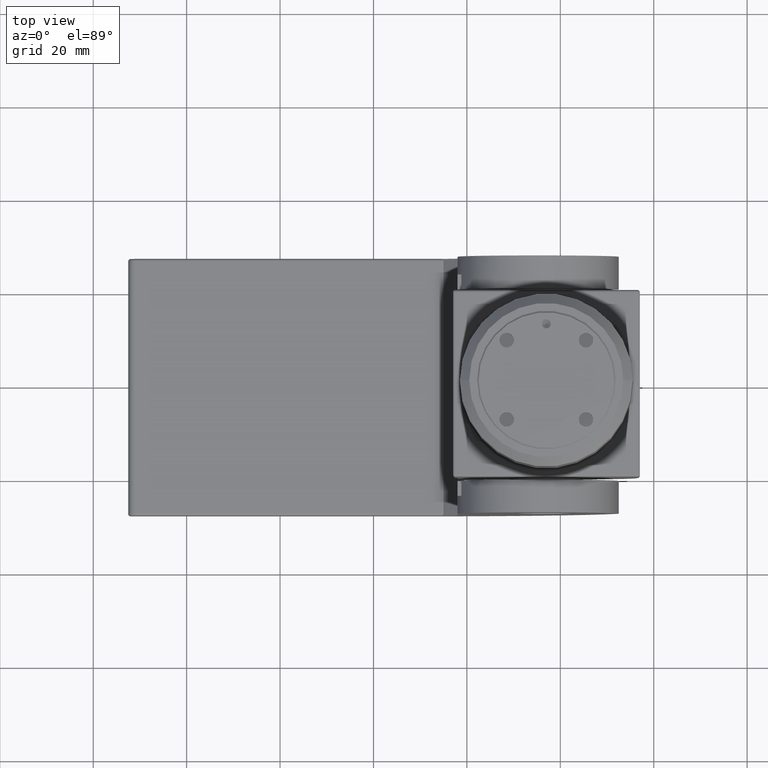
[diagram: clean part render]
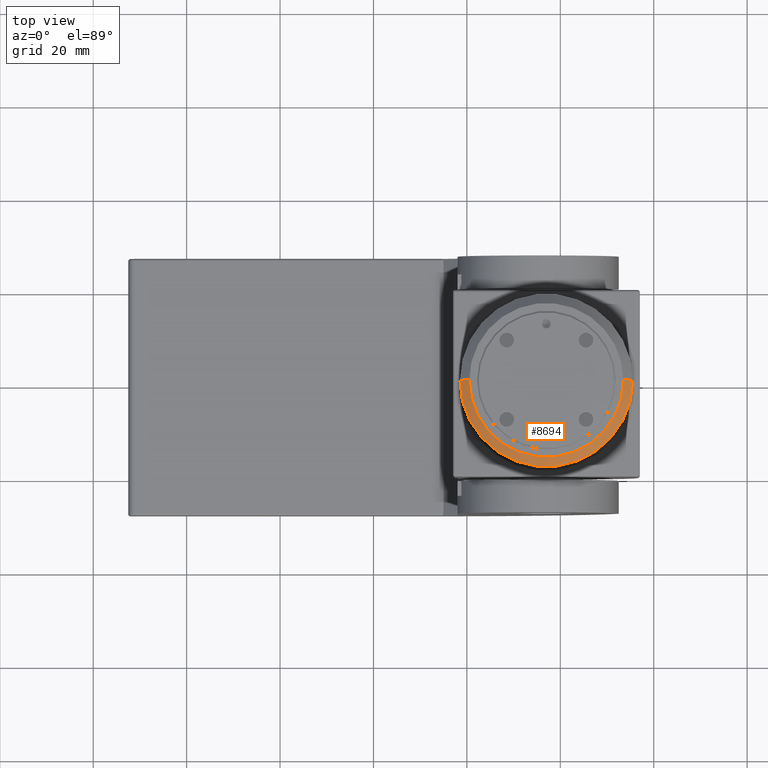
[diagram: same view with one face highlighted and labeled with its STEP entity id]
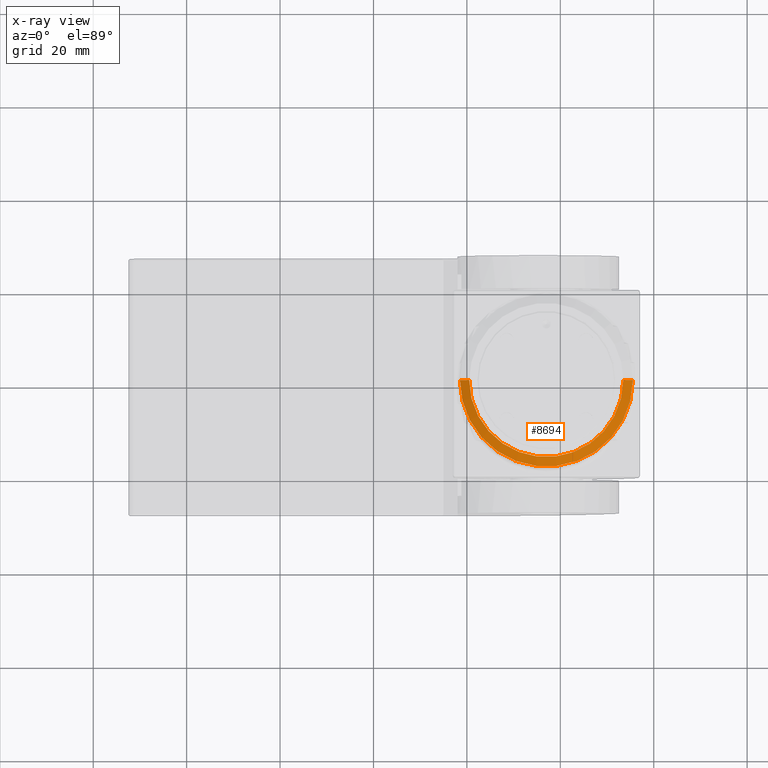
[diagram: x-ray of the same camera — body ghosted, the highlighted face saturated]
A machine part, top view. The second image highlights one B-rep face of the part: STEP entity #8694.
The next image is the same camera in x-ray: the body ghosted, the highlighted face saturated — about 0% of this face is hidden behind the body in this view.
In plain terms, the highlighted conical surface has half-angle 45 deg.
Its self-contained STEP definition (entity closure, byte-faithful):
#807 = DIRECTION ( 'NONE',  ( 1.000000000000000000, 0.000000000000000000, 0.000000000000000000 ) ) ;
#1109 = CARTESIAN_POINT ( 'NONE',  ( -18.50000000000000000, 0.000000000000000000, 39.49999999999996447 ) ) ;
#1130 = LINE ( 'NONE', #19925, #7360 ) ;
#2403 = CARTESIAN_POINT ( 'NONE',  ( 0.000000000000000000, 0.000000000000000000, 39.49999999999996447 ) ) ;
#3007 = VERTEX_POINT ( 'NONE', #9163 ) ;
#3282 = CIRCLE ( 'NONE', #16482, 18.50000000000000000 ) ;
#3652 = ORIENTED_EDGE ( 'NONE', *, *, #20141, .T. ) ;
#3674 = AXIS2_PLACEMENT_3D ( 'NONE', #7520, #14750, #9320 ) ;
#3772 = CONICAL_SURFACE ( 'NONE', #3674, 16.49999999999997158, 0.7853981633974457255 ) ;
#4081 = DIRECTION ( 'NONE',  ( 0.000000000000000000, 0.000000000000000000, -1.000000000000000000 ) ) ;
#4127 = ORIENTED_EDGE ( 'NONE', *, *, #5957, .F. ) ;
#4492 = VERTEX_POINT ( 'NONE', #8134 ) ;
#5957 = EDGE_CURVE ( 'NONE', #4492, #3007, #1130, .T. ) ;
#6328 = EDGE_CURVE ( 'NONE', #3007, #21605, #3282, .T. ) ;
#7360 = VECTOR ( 'NONE', #16668, 1000.000000000000000 ) ;
#7436 = EDGE_CURVE ( 'NONE', #12280, #4492, #8922, .T. ) ;
#7520 = CARTESIAN_POINT ( 'NONE',  ( 0.000000000000000000, 0.000000000000000000, 41.50000000000000711 ) ) ;
#8134 = CARTESIAN_POINT ( 'NONE',  ( 16.49999999999997158, 2.143131898507866276E-15, 41.50000000000000711 ) ) ;
#8454 = ORIENTED_EDGE ( 'NONE', *, *, #7436, .F. ) ;
#8694 = ADVANCED_FACE ( 'NONE', ( #20222 ), #3772, .T. ) ;
#8922 = CIRCLE ( 'NONE', #10301, 16.49999999999997158 ) ;
#9163 = CARTESIAN_POINT ( 'NONE',  ( 18.50000000000000000, 2.265596578422603396E-15, 39.49999999999996447 ) ) ;
#9320 = DIRECTION ( 'NONE',  ( -1.000000000000000000, 0.000000000000000000, 0.000000000000000000 ) ) ;
#10301 = AXIS2_PLACEMENT_3D ( 'NONE', #14576, #14352, #21126 ) ;
#12280 = VERTEX_POINT ( 'NONE', #21506 ) ;
#12520 = VECTOR ( 'NONE', #20717, 1000.000000000000000 ) ;
#14352 = DIRECTION ( 'NONE',  ( 0.000000000000000000, 0.000000000000000000, 1.000000000000000000 ) ) ;
#14576 = CARTESIAN_POINT ( 'NONE',  ( 0.000000000000000000, 0.000000000000000000, 41.50000000000000711 ) ) ;
#14750 = DIRECTION ( 'NONE',  ( 0.000000000000000000, 0.000000000000000000, -1.000000000000000000 ) ) ;
#16273 = EDGE_LOOP ( 'NONE', ( #4127, #8454, #3652, #20036 ) ) ;
#16482 = AXIS2_PLACEMENT_3D ( 'NONE', #2403, #4081, #807 ) ;
#16668 = DIRECTION ( 'NONE',  ( 0.7071067811865456854, 8.659560562354909439E-17, -0.7071067811865493491 ) ) ;
#17076 = CARTESIAN_POINT ( 'NONE',  ( -16.49999999999997158, 0.000000000000000000, 41.50000000000000711 ) ) ;
#17900 = LINE ( 'NONE', #17076, #12520 ) ;
#19925 = CARTESIAN_POINT ( 'NONE',  ( 16.49999999999997158, 2.020667218593129550E-15, 41.50000000000000711 ) ) ;
#20036 = ORIENTED_EDGE ( 'NONE', *, *, #6328, .F. ) ;
#20141 = EDGE_CURVE ( 'NONE', #12280, #21605, #17900, .T. ) ;
#20222 = FACE_OUTER_BOUND ( 'NONE', #16273, .T. ) ;
#20717 = DIRECTION ( 'NONE',  ( -0.7071067811865456854, 0.000000000000000000, -0.7071067811865493491 ) ) ;
#21126 = DIRECTION ( 'NONE',  ( 1.000000000000000000, 0.000000000000000000, 0.000000000000000000 ) ) ;
#21506 = CARTESIAN_POINT ( 'NONE',  ( -16.49999999999997158, 0.000000000000000000, 41.50000000000000711 ) ) ;
#21605 = VERTEX_POINT ( 'NONE', #1109 ) ;